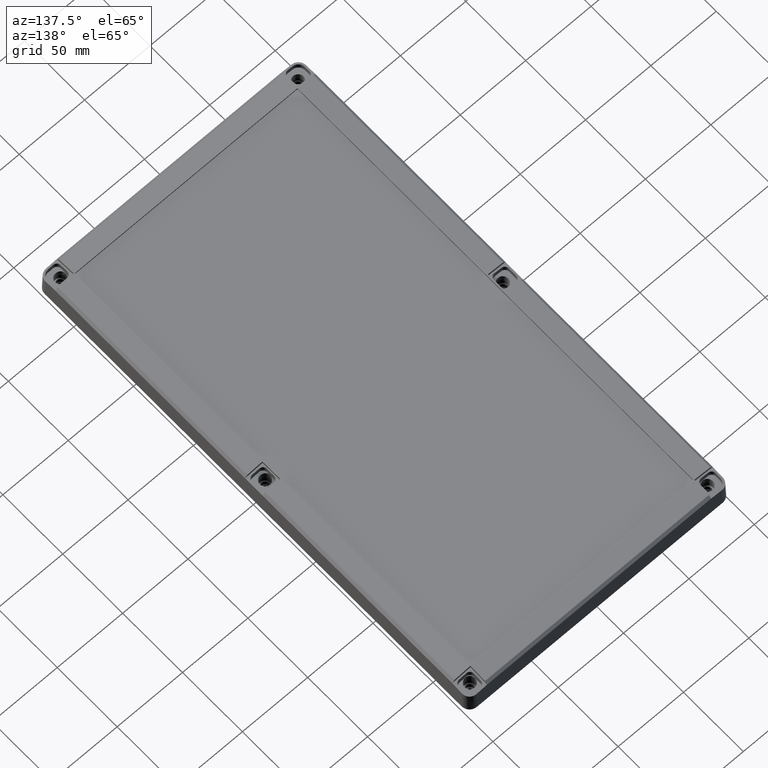
[diagram: clean part render]
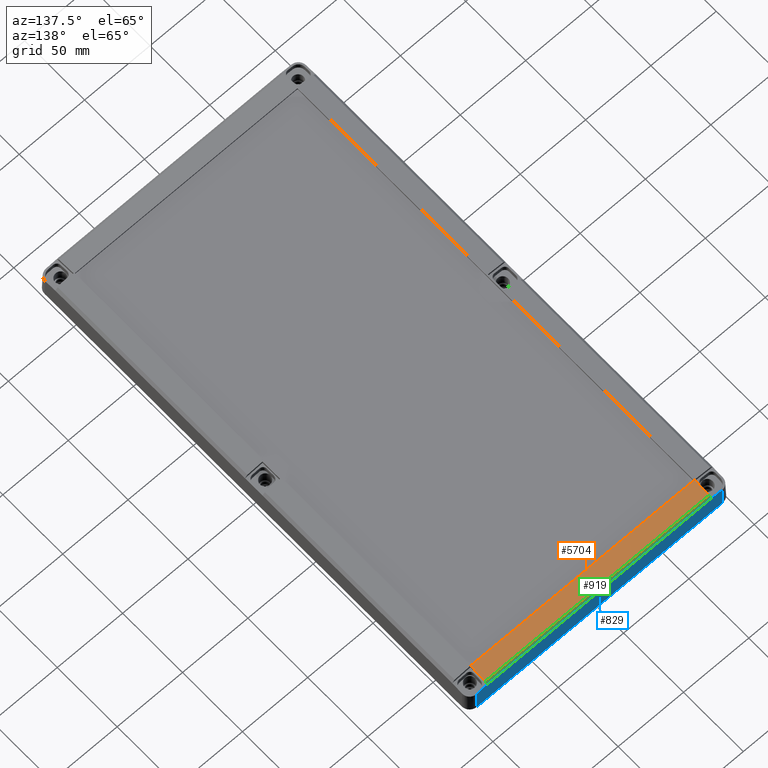
[diagram: same view with three faces highlighted in distinct colors, each labeled with its STEP entity id]
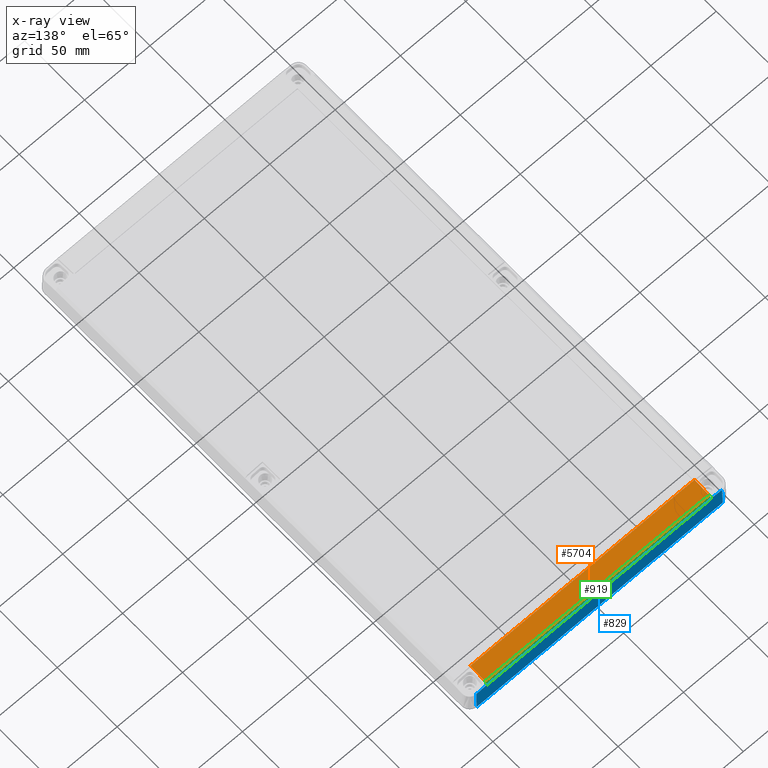
[diagram: x-ray of the same camera — body ghosted, the three highlighted faces saturated]
A machine part, auxiliary view with three faces highlighted in distinct colors.
The next image is the same camera in x-ray (body ghosted, the three faces saturated) — at least one of them is partly hidden behind the body in this view.
Their STEP definitions:

[orange] entity #5704 — the highlighted planar face has unit normal (0, 0.0872, 0.9962).
#319 = EDGE_CURVE ( 'NONE', #3350, #3572, #2816, .T. ) ;
#362 = CARTESIAN_POINT ( 'NONE',  ( -99.56230910268365600, 165.7123091026829200, 20.00000000000000000 ) ) ;
#588 = CARTESIAN_POINT ( 'NONE',  ( -85.68077125943924000, 177.8356825560881000, 18.93934225913595900 ) ) ;
#968 = PLANE ( 'NONE',  #5738 ) ;
#1053 = EDGE_CURVE ( 'NONE', #1989, #6189, #6684, .T. ) ;
#1319 = ORIENTED_EDGE ( 'NONE', *, *, #1053, .T. ) ;
#1419 = VECTOR ( 'NONE', #5677, 1000.000000000000000 ) ;
#1989 = VERTEX_POINT ( 'NONE', #6171 ) ;
#2119 = CARTESIAN_POINT ( 'NONE',  ( -85.68077125943924000, 165.7123091026829200, 20.00000000000000000 ) ) ;
#2280 = EDGE_CURVE ( 'NONE', #1989, #3350, #4313, .T. ) ;
#2684 = DIRECTION ( 'NONE',  ( -3.331196164539343500E-016, -0.9961946980917457700, 0.08715574274765468300 ) ) ;
#2816 = LINE ( 'NONE', #362, #1419 ) ;
#3087 = DIRECTION ( 'NONE',  ( -1.000000000000000000, 0.0000000000000000000, 0.0000000000000000000 ) ) ;
#3334 = CARTESIAN_POINT ( 'NONE',  ( 85.68077125943926800, 165.7123091026829500, 20.00000000000000000 ) ) ;
#3350 = VERTEX_POINT ( 'NONE', #3334 ) ;
#3572 = VERTEX_POINT ( 'NONE', #2119 ) ;
#3577 = DIRECTION ( 'NONE',  ( 3.331196164539343500E-016, -0.9961946980917457700, 0.08715574274765468300 ) ) ;
#3636 = EDGE_LOOP ( 'NONE', ( #6469, #1319, #4297, #4048 ) ) ;
#4044 = LINE ( 'NONE', #4119, #5650 ) ;
#4048 = ORIENTED_EDGE ( 'NONE', *, *, #319, .F. ) ;
#4117 = EDGE_CURVE ( 'NONE', #6189, #3572, #4044, .T. ) ;
#4119 = CARTESIAN_POINT ( 'NONE',  ( -85.68077125943924000, 179.5949623929181800, 18.78542521744359600 ) ) ;
#4297 = ORIENTED_EDGE ( 'NONE', *, *, #4117, .T. ) ;
#4313 = LINE ( 'NONE', #5889, #5909 ) ;
#5211 = FACE_OUTER_BOUND ( 'NONE', #3636, .T. ) ;
#5650 = VECTOR ( 'NONE', #3577, 1000.000000000000100 ) ;
#5677 = DIRECTION ( 'NONE',  ( -1.000000000000000000, 0.0000000000000000000, 0.0000000000000000000 ) ) ;
#5704 = ADVANCED_FACE ( 'NONE', ( #5211 ), #968, .T. ) ;
#5738 = AXIS2_PLACEMENT_3D ( 'NONE', #5766, #6300, #3087 ) ;
#5766 = CARTESIAN_POINT ( 'NONE',  ( -100.0999999999999900, 179.5949623929181800, 18.78542521744359600 ) ) ;
#5868 = DIRECTION ( 'NONE',  ( -1.000000000000000000, 0.0000000000000000000, 0.0000000000000000000 ) ) ;
#5889 = CARTESIAN_POINT ( 'NONE',  ( 85.68077125943926800, 179.5949623929181200, 18.78542521744360300 ) ) ;
#5909 = VECTOR ( 'NONE', #2684, 1000.000000000000100 ) ;
#6171 = CARTESIAN_POINT ( 'NONE',  ( 85.68077125943926800, 177.8356825560881000, 18.93934225913595900 ) ) ;
#6189 = VERTEX_POINT ( 'NONE', #588 ) ;
#6300 = DIRECTION ( 'NONE',  ( 0.0000000000000000000, 0.08715574274765471000, 0.9961946980917458800 ) ) ;
#6405 = CARTESIAN_POINT ( 'NONE',  ( -100.0999999999999900, 177.8356825560881000, 18.93934225913595900 ) ) ;
#6469 = ORIENTED_EDGE ( 'NONE', *, *, #2280, .F. ) ;
#6510 = VECTOR ( 'NONE', #5868, 1000.000000000000000 ) ;
#6684 = LINE ( 'NONE', #6405, #6510 ) ;

[blue] entity #829 — the highlighted planar face has unit normal (0, 0.9996, 0.0269).
#48 = CARTESIAN_POINT ( 'NONE',  ( -101.4707230514942800, 179.6800823463788100, 15.61929561080630300 ) ) ;
#124 = DIRECTION ( 'NONE',  ( 0.0000000000000000000, -0.02687483434051928700, 0.9996388064091797900 ) ) ;
#165 = CARTESIAN_POINT ( 'NONE',  ( 85.71230910268296600, 179.6429297063567100, 17.00122862129797200 ) ) ;
#238 = CARTESIAN_POINT ( 'NONE',  ( -85.71230767677295100, 179.6429275376265200, 17.00130928958510200 ) ) ;
#409 = DIRECTION ( 'NONE',  ( 1.000000000000000000, 0.0000000000000000000, 0.0000000000000000000 ) ) ;
#503 = LINE ( 'NONE', #5463, #5992 ) ;
#740 = EDGE_CURVE ( 'NONE', #2740, #5892, #503, .T. ) ;
#780 = EDGE_CURVE ( 'NONE', #1014, #5668, #3042, .T. ) ;
#787 = LINE ( 'NONE', #3464, #3418 ) ;
#829 = ADVANCED_FACE ( 'NONE', ( #4572 ), #2190, .T. ) ;
#879 = CARTESIAN_POINT ( 'NONE',  ( 94.01454411725866600, 179.6625033734704900, 16.27316470161857600 ) ) ;
#994 = CARTESIAN_POINT ( 'NONE',  ( -93.96932694718839200, 179.9600547693410400, 5.205415652649017000 ) ) ;
#1014 = VERTEX_POINT ( 'NONE', #879 ) ;
#1235 = ORIENTED_EDGE ( 'NONE', *, *, #5498, .F. ) ;
#1347 = CARTESIAN_POINT ( 'NONE',  ( -94.01454411725863700, 179.6625033734704900, 16.27316470161858700 ) ) ;
#1527 = AXIS2_PLACEMENT_3D ( 'NONE', #6477, #3265, #124 ) ;
#1782 = CARTESIAN_POINT ( 'NONE',  ( 94.01454411725866600, 179.6625033734704900, 16.27316470161857600 ) ) ;
#1797 = LINE ( 'NONE', #5032, #6379 ) ;
#1850 = DIRECTION ( 'NONE',  ( 1.000000000000000000, 0.0000000000000000000, 0.0000000000000000000 ) ) ;
#2017 = VECTOR ( 'NONE', #409, 1000.000000000000000 ) ;
#2051 = VERTEX_POINT ( 'NONE', #6240 ) ;
#2060 = CARTESIAN_POINT ( 'NONE',  ( -94.17190794382216300, 179.8198672000339700, 10.41984535591475800 ) ) ;
#2133 = ORIENTED_EDGE ( 'NONE', *, *, #2910, .T. ) ;
#2190 = PLANE ( 'NONE',  #1527 ) ;
#2306 = ORIENTED_EDGE ( 'NONE', *, *, #740, .T. ) ;
#2323 = CARTESIAN_POINT ( 'NONE',  ( 94.17190794382217700, 179.8198672000340300, 10.41984535591475900 ) ) ;
#2588 = CARTESIAN_POINT ( 'NONE',  ( -94.02615988091133700, 179.6741191371231700, 15.84110368995980300 ) ) ;
#2740 = VERTEX_POINT ( 'NONE', #4451 ) ;
#2806 = VERTEX_POINT ( 'NONE', #1347 ) ;
#2848 = CARTESIAN_POINT ( 'NONE',  ( 94.10227574382452100, 180.0999999999999900, 0.0000000000000000000 ) ) ;
#2878 = ORIENTED_EDGE ( 'NONE', *, *, #780, .T. ) ;
#2883 = ORIENTED_EDGE ( 'NONE', *, *, #6144, .T. ) ;
#2910 = EDGE_CURVE ( 'NONE', #3320, #1014, #3018, .T. ) ;
#3018 = LINE ( 'NONE', #4009, #5700 ) ;
#3026 = LINE ( 'NONE', #48, #4443 ) ;
#3042 = B_SPLINE_CURVE_WITH_KNOTS ( 'NONE', 3,
 ( #1782, #4409, #6030, #5516, #2323, #6052, #2848 ),
 .UNSPECIFIED., .F., .F.,
 ( 4, 3, 4 ),
 ( -0.009676821385581286000, -0.009028261610476727400, 0.006598704482458627200 ),
 .UNSPECIFIED. ) ;
#3074 = VERTEX_POINT ( 'NONE', #6396 ) ;
#3109 = CARTESIAN_POINT ( 'NONE',  ( -94.01454411725863700, 179.6625033734704900, 16.27316470161858700 ) ) ;
#3189 = DIRECTION ( 'NONE',  ( 0.9961740893152020200, -0.002348618170579246300, 0.08735941717821157900 ) ) ;
#3265 = DIRECTION ( 'NONE',  ( 0.0000000000000000000, 0.9996388064091797900, 0.02687483434051928700 ) ) ;
#3320 = VERTEX_POINT ( 'NONE', #165 ) ;
#3418 = VECTOR ( 'NONE', #5068, 1000.000000000000100 ) ;
#3425 = EDGE_CURVE ( 'NONE', #5892, #3074, #6104, .T. ) ;
#3452 = ORIENTED_EDGE ( 'NONE', *, *, #6828, .F. ) ;
#3464 = CARTESIAN_POINT ( 'NONE',  ( 85.95473592779285400, 180.0116474850609900, 3.286368260276017600 ) ) ;
#4009 = CARTESIAN_POINT ( 'NONE',  ( -97.20031275634470100, 179.2116879064201700, 33.04173821849876400 ) ) ;
#4037 = DIRECTION ( 'NONE',  ( 0.9961740893152020200, 0.002348618170579246300, -0.08735941717821157900 ) ) ;
#4184 = EDGE_CURVE ( 'NONE', #2051, #2806, #6312, .T. ) ;
#4409 = CARTESIAN_POINT ( 'NONE',  ( 94.02035199908502200, 179.6683112552968000, 16.05713419578919200 ) ) ;
#4443 = VECTOR ( 'NONE', #3189, 1000.000000000000000 ) ;
#4451 = CARTESIAN_POINT ( 'NONE',  ( -85.71230910268296600, 179.6429297063567100, 17.00122862129798000 ) ) ;
#4572 = FACE_OUTER_BOUND ( 'NONE', #5162, .T. ) ;
#4676 = CARTESIAN_POINT ( 'NONE',  ( 94.10227574382452100, 180.0999999999999900, 0.0000000000000000000 ) ) ;
#4703 = CARTESIAN_POINT ( 'NONE',  ( -94.10227574382452100, 180.0999999999999900, 0.0000000000000000000 ) ) ;
#5032 = CARTESIAN_POINT ( 'NONE',  ( -100.0999999999999900, 180.0999999999999900, 0.0000000000000000000 ) ) ;
#5068 = DIRECTION ( 'NONE',  ( -0.01766707298775155300, -0.02687063985306978300, 0.9994827878687716500 ) ) ;
#5156 = CARTESIAN_POINT ( 'NONE',  ( -100.0999999999999900, 179.6429275376265200, 17.00130928958510200 ) ) ;
#5162 = EDGE_LOOP ( 'NONE', ( #2133, #2878, #1235, #5807, #2883, #2306, #5975, #3452 ) ) ;
#5463 = CARTESIAN_POINT ( 'NONE',  ( -86.01722344647734500, 180.1066875412744500, -0.2487503994524369000 ) ) ;
#5498 = EDGE_CURVE ( 'NONE', #2051, #5668, #1797, .T. ) ;
#5516 = CARTESIAN_POINT ( 'NONE',  ( 94.03196776273772200, 179.6799270189495100, 15.62507318413041600 ) ) ;
#5668 = VERTEX_POINT ( 'NONE', #4676 ) ;
#5700 = VECTOR ( 'NONE', #4037, 1000.000000000000000 ) ;
#5787 = CARTESIAN_POINT ( 'NONE',  ( -94.03196776273770800, 179.6799270189495100, 15.62507318413041600 ) ) ;
#5807 = ORIENTED_EDGE ( 'NONE', *, *, #4184, .T. ) ;
#5892 = VERTEX_POINT ( 'NONE', #238 ) ;
#5975 = ORIENTED_EDGE ( 'NONE', *, *, #3425, .T. ) ;
#5992 = VECTOR ( 'NONE', #6512, 1000.000000000000100 ) ;
#6030 = CARTESIAN_POINT ( 'NONE',  ( 94.02615988091136500, 179.6741191371231700, 15.84110368995980300 ) ) ;
#6052 = CARTESIAN_POINT ( 'NONE',  ( 93.96932694718840700, 179.9600547693411000, 5.205415652649017000 ) ) ;
#6104 = LINE ( 'NONE', #5156, #2017 ) ;
#6144 = EDGE_CURVE ( 'NONE', #2806, #2740, #3026, .T. ) ;
#6240 = CARTESIAN_POINT ( 'NONE',  ( -94.10227574382452100, 180.0999999999999900, 0.0000000000000000000 ) ) ;
#6312 = B_SPLINE_CURVE_WITH_KNOTS ( 'NONE', 3,
 ( #4703, #994, #2060, #5787, #2588, #6325, #3109 ),
 .UNSPECIFIED., .F., .F.,
 ( 4, 3, 4 ),
 ( -0.006598704482458617700, 0.009028261610476734400, 0.009676821385581284300 ),
 .UNSPECIFIED. ) ;
#6325 = CARTESIAN_POINT ( 'NONE',  ( -94.02035199908498000, 179.6683112552967700, 16.05713419578918900 ) ) ;
#6379 = VECTOR ( 'NONE', #1850, 1000.000000000000000 ) ;
#6396 = CARTESIAN_POINT ( 'NONE',  ( 85.71230767677295100, 179.6429275376265200, 17.00130928958510200 ) ) ;
#6477 = CARTESIAN_POINT ( 'NONE',  ( -100.0999999999999900, 180.0999999999999900, 0.0000000000000000000 ) ) ;
#6512 = DIRECTION ( 'NONE',  ( 0.01766707298775155300, -0.02687063985306978300, 0.9994827878687716500 ) ) ;
#6828 = EDGE_CURVE ( 'NONE', #3320, #3074, #787, .T. ) ;

[green] entity #919 — the highlighted planar face has unit normal (0, -0.7314, -0.682).
#88 = FACE_OUTER_BOUND ( 'NONE', #2730, .T. ) ;
#185 = VECTOR ( 'NONE', #553, 1000.000000000000000 ) ;
#238 = CARTESIAN_POINT ( 'NONE',  ( -85.71230767677295100, 179.6429275376265200, 17.00130928958510200 ) ) ;
#329 = DIRECTION ( 'NONE',  ( -0.01190002584280886600, -0.6819500692492043200, 0.7313019160619955700 ) ) ;
#386 = VECTOR ( 'NONE', #329, 1000.000000000000000 ) ;
#409 = DIRECTION ( 'NONE',  ( 1.000000000000000000, 0.0000000000000000000, 0.0000000000000000000 ) ) ;
#553 = DIRECTION ( 'NONE',  ( -0.01190002584280886600, 0.6819500692492043200, -0.7313019160619955700 ) ) ;
#588 = CARTESIAN_POINT ( 'NONE',  ( -85.68077125943924000, 177.8356825560881000, 18.93934225913595900 ) ) ;
#738 = DIRECTION ( 'NONE',  ( 1.000000000000000000, 0.0000000000000000000, 0.0000000000000000000 ) ) ;
#919 = ADVANCED_FACE ( 'NONE', ( #88 ), #2843, .F. ) ;
#1053 = EDGE_CURVE ( 'NONE', #1989, #6189, #6684, .T. ) ;
#1738 = LINE ( 'NONE', #5310, #185 ) ;
#1989 = VERTEX_POINT ( 'NONE', #6171 ) ;
#2017 = VECTOR ( 'NONE', #409, 1000.000000000000000 ) ;
#2038 = ORIENTED_EDGE ( 'NONE', *, *, #2526, .F. ) ;
#2526 = EDGE_CURVE ( 'NONE', #6189, #5892, #1738, .T. ) ;
#2730 = EDGE_LOOP ( 'NONE', ( #2038, #4801, #2949, #4624 ) ) ;
#2843 = PLANE ( 'NONE',  #6197 ) ;
#2889 = EDGE_CURVE ( 'NONE', #3074, #1989, #3331, .T. ) ;
#2949 = ORIENTED_EDGE ( 'NONE', *, *, #2889, .F. ) ;
#3074 = VERTEX_POINT ( 'NONE', #6396 ) ;
#3331 = LINE ( 'NONE', #3475, #386 ) ;
#3425 = EDGE_CURVE ( 'NONE', #5892, #3074, #6104, .T. ) ;
#3475 = CARTESIAN_POINT ( 'NONE',  ( 85.68599468159720800, 178.1350191415207300, 18.61834307115241300 ) ) ;
#3890 = DIRECTION ( 'NONE',  ( 0.0000000000000000000, -0.7313537016191629100, -0.6819983600625068000 ) ) ;
#4624 = ORIENTED_EDGE ( 'NONE', *, *, #3425, .F. ) ;
#4801 = ORIENTED_EDGE ( 'NONE', *, *, #1053, .F. ) ;
#5156 = CARTESIAN_POINT ( 'NONE',  ( -100.0999999999999900, 179.6429275376265200, 17.00130928958510200 ) ) ;
#5310 = CARTESIAN_POINT ( 'NONE',  ( -86.03248165372262700, 197.9910108642323800, -2.674601158792183000 ) ) ;
#5868 = DIRECTION ( 'NONE',  ( -1.000000000000000000, 0.0000000000000000000, 0.0000000000000000000 ) ) ;
#5892 = VERTEX_POINT ( 'NONE', #238 ) ;
#6104 = LINE ( 'NONE', #5156, #2017 ) ;
#6171 = CARTESIAN_POINT ( 'NONE',  ( 85.68077125943926800, 177.8356825560881000, 18.93934225913595900 ) ) ;
#6189 = VERTEX_POINT ( 'NONE', #588 ) ;
#6197 = AXIS2_PLACEMENT_3D ( 'NONE', #6571, #3890, #738 ) ;
#6396 = CARTESIAN_POINT ( 'NONE',  ( 85.71230767677295100, 179.6429275376265200, 17.00130928958510200 ) ) ;
#6405 = CARTESIAN_POINT ( 'NONE',  ( -100.0999999999999900, 177.8356825560881000, 18.93934225913595900 ) ) ;
#6510 = VECTOR ( 'NONE', #5868, 1000.000000000000000 ) ;
#6571 = CARTESIAN_POINT ( 'NONE',  ( -100.0999999999999900, 179.6429275376265200, 17.00130928958509500 ) ) ;
#6684 = LINE ( 'NONE', #6405, #6510 ) ;